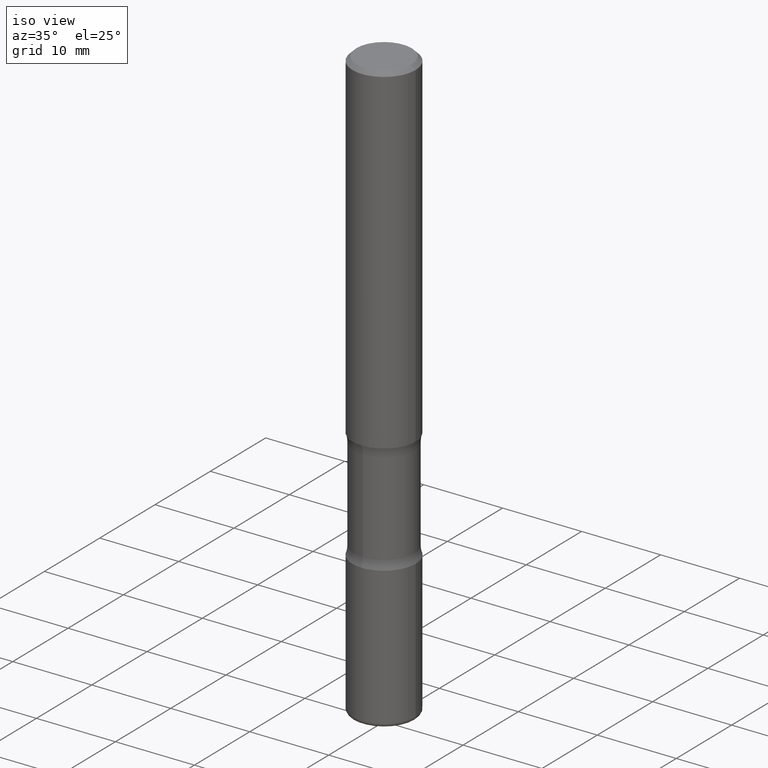
[diagram: clean part render]
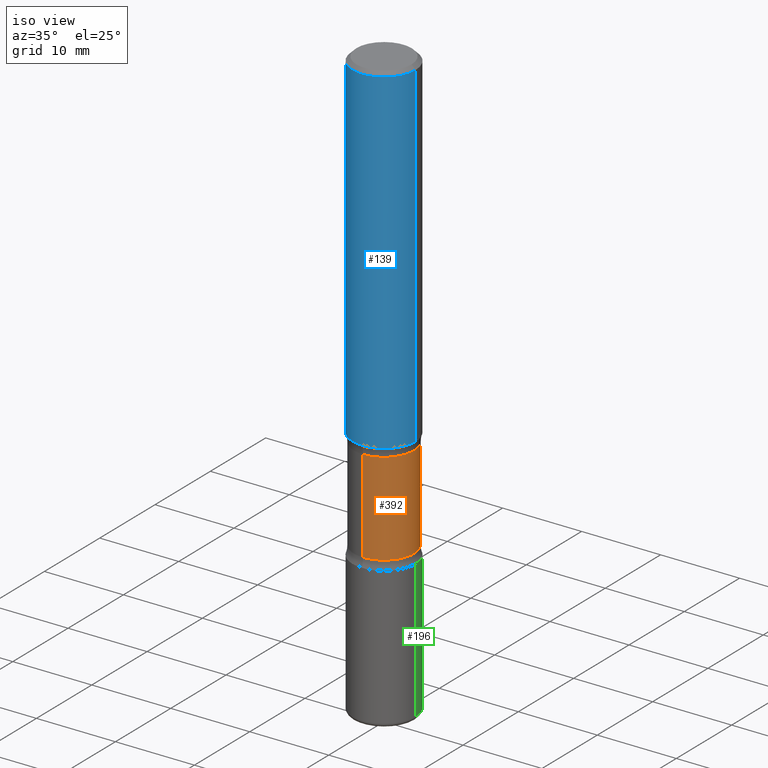
[diagram: same view with three faces highlighted in distinct colors, each labeled with its STEP entity id]
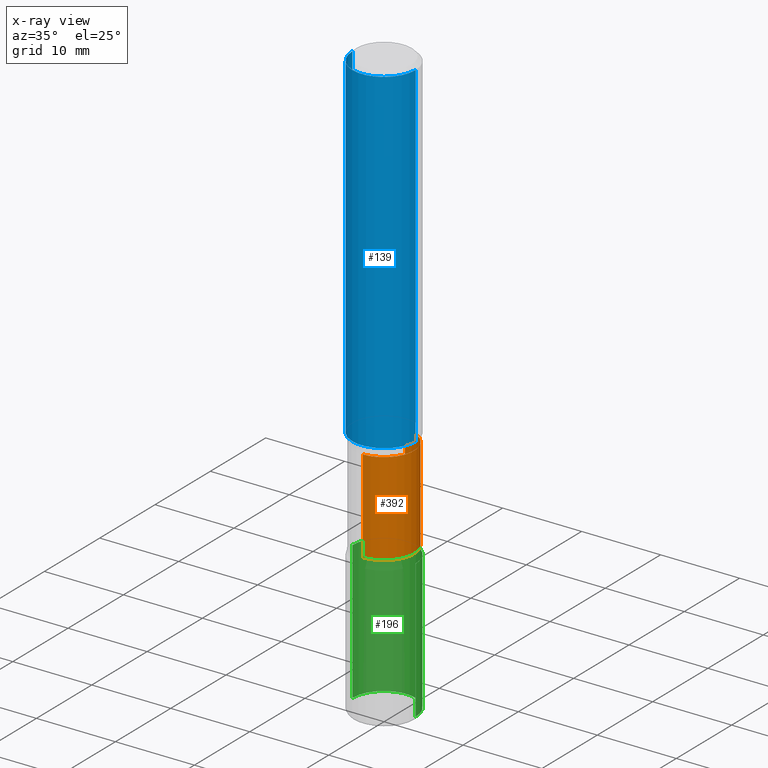
[diagram: x-ray of the same camera — body ghosted, the three highlighted faces saturated]
A machine part, iso view with three faces highlighted in distinct colors.
The next image is the same camera in x-ray (body ghosted, the three faces saturated) — at least one of them is partly hidden behind the body in this view.
Their STEP definitions:

[orange] entity #392 — the highlighted cylindrical surface (partial cylindrical patch) has radius 3.7998 mm, axis along (0, -0, -1).
#3 = FACE_OUTER_BOUND ( 'NONE', #237, .T. ) ;
#41 = CARTESIAN_POINT ( 'NONE',  ( 5.394669899984199995E-29, -7.662861192454106657E-15, -2.200366831809254631 ) ) ;
#50 = LINE ( 'NONE', #554, #271 ) ;
#74 = AXIS2_PLACEMENT_3D ( 'NONE', #41, #510, #255 ) ;
#104 = DIRECTION ( 'NONE',  ( 2.131257620516683255E-29, -3.941449640510431903E-15, -1.000000000000000000 ) ) ;
#118 = EDGE_CURVE ( 'NONE', #229, #486, #217, .T. ) ;
#137 = DIRECTION ( 'NONE',  ( 2.131257620516683255E-29, -3.941449640510431903E-15, -1.000000000000000000 ) ) ;
#149 = DIRECTION ( 'NONE',  ( 6.982962677686265133E-15, 1.000000000000000000, -3.652203200085917089E-15 ) ) ;
#168 = DIRECTION ( 'NONE',  ( 2.131257620516683255E-29, -3.941449640510431903E-15, -1.000000000000000000 ) ) ;
#176 = ORIENTED_EDGE ( 'NONE', *, *, #251, .T. ) ;
#179 = CARTESIAN_POINT ( 'NONE',  ( -1.053429467557764082E-15, -0.1496000000000076158, -2.200366831809253743 ) ) ;
#207 = VERTEX_POINT ( 'NONE', #179 ) ;
#217 = LINE ( 'NONE', #306, #226 ) ;
#226 = VECTOR ( 'NONE', #469, 39.37007874015748143 ) ;
#229 = VERTEX_POINT ( 'NONE', #373 ) ;
#237 = EDGE_LOOP ( 'NONE', ( #466, #176, #289, #364 ) ) ;
#251 = EDGE_CURVE ( 'NONE', #362, #207, #50, .T. ) ;
#255 = DIRECTION ( 'NONE',  ( 6.982962677686265133E-15, 1.000000000000000000, -3.652203200085914722E-15 ) ) ;
#271 = VECTOR ( 'NONE', #168, 39.37007874015748143 ) ;
#289 = ORIENTED_EDGE ( 'NONE', *, *, #300, .F. ) ;
#300 = EDGE_CURVE ( 'NONE', #486, #207, #307, .T. ) ;
#306 = CARTESIAN_POINT ( 'NONE',  ( 1.044651216581934232E-15, 0.1495999999999892416, -2.952800000000000313 ) ) ;
#307 = CIRCLE ( 'NONE', #74, 0.1495999999999999552 ) ;
#310 = CARTESIAN_POINT ( 'NONE',  ( 1.044651216581919046E-15, 0.1495999999999922947, -2.200366831809255075 ) ) ;
#362 = VERTEX_POINT ( 'NONE', #458 ) ;
#364 = ORIENTED_EDGE ( 'NONE', *, *, #118, .F. ) ;
#368 = AXIS2_PLACEMENT_3D ( 'NONE', #473, #104, #433 ) ;
#373 = CARTESIAN_POINT ( 'NONE',  ( 1.044651216581907805E-15, 0.1495999999999939323, -1.736733168190745635 ) ) ;
#392 = ADVANCED_FACE ( 'NONE', ( #3 ), #515, .T. ) ;
#405 = AXIS2_PLACEMENT_3D ( 'NONE', #483, #137, #149 ) ;
#433 = DIRECTION ( 'NONE',  ( 6.982962677686266711E-15, 1.000000000000000000, -3.652203200085919456E-15 ) ) ;
#448 = CIRCLE ( 'NONE', #368, 0.1495999999999997609 ) ;
#458 = CARTESIAN_POINT ( 'NONE',  ( -1.053429467557773351E-15, -0.1496000000000056174, -1.736733168190744525 ) ) ;
#466 = ORIENTED_EDGE ( 'NONE', *, *, #494, .T. ) ;
#469 = DIRECTION ( 'NONE',  ( 2.131257620516683255E-29, -3.941449640510431903E-15, -1.000000000000000000 ) ) ;
#473 = CARTESIAN_POINT ( 'NONE',  ( 4.406547121269184241E-29, -5.835472455656399811E-15, -1.736733168190745191 ) ) ;
#483 = CARTESIAN_POINT ( 'NONE',  ( 6.998298823620237737E-29, -1.062853863272764355E-14, -2.952799999999999869 ) ) ;
#486 = VERTEX_POINT ( 'NONE', #310 ) ;
#494 = EDGE_CURVE ( 'NONE', #229, #362, #448, .T. ) ;
#510 = DIRECTION ( 'NONE',  ( 2.131257620516683255E-29, -3.941449640510431903E-15, -1.000000000000000000 ) ) ;
#515 = CYLINDRICAL_SURFACE ( 'NONE', #405, 0.1495999999999998442 ) ;
#554 = CARTESIAN_POINT ( 'NONE',  ( -1.026330500466550053E-15, -0.1496000000000104746, -2.952799999999998981 ) ) ;

[blue] entity #139 — the highlighted cylindrical surface (partial cylindrical patch) has radius 4.0005 mm, axis along (-0, 0, 1).
#6 = CARTESIAN_POINT ( 'NONE',  ( -0.1575000000000000011, 1.119104808822157801E-15, -7.747322767151475583E-30 ) ) ;
#35 = CARTESIAN_POINT ( 'NONE',  ( -0.1575000000000000844, -1.871348957896992789E-15, -1.692999999999999616 ) ) ;
#37 = VERTEX_POINT ( 'NONE', #210 ) ;
#47 = DIRECTION ( 'NONE',  ( -2.445468806185136597E-29, 3.491481338843145583E-15, 1.000000000000000000 ) ) ;
#55 = DIRECTION ( 'NONE',  ( -2.445468806185136597E-29, 3.491481338843145583E-15, 1.000000000000000000 ) ) ;
#60 = CARTESIAN_POINT ( 'NONE',  ( 0.000000000000000000, 0.000000000000000000, 0.000000000000000000 ) ) ;
#82 = ORIENTED_EDGE ( 'NONE', *, *, #121, .T. ) ;
#91 = CIRCLE ( 'NONE', #557, 0.1574999999999998901 ) ;
#99 = CYLINDRICAL_SURFACE ( 'NONE', #119, 0.1575000000000000011 ) ;
#102 = VECTOR ( 'NONE', #145, 39.37007874015748143 ) ;
#105 = LINE ( 'NONE', #425, #396 ) ;
#119 = AXIS2_PLACEMENT_3D ( 'NONE', #60, #47, #311 ) ;
#121 = EDGE_CURVE ( 'NONE', #274, #447, #105, .T. ) ;
#125 = EDGE_LOOP ( 'NONE', ( #531, #534, #82, #166 ) ) ;
#139 = ADVANCED_FACE ( 'NONE', ( #434 ), #99, .T. ) ;
#145 = DIRECTION ( 'NONE',  ( -2.445468806185136877E-29, 3.491481338843145188E-15, 1.000000000000000000 ) ) ;
#165 = AXIS2_PLACEMENT_3D ( 'NONE', #273, #55, #230 ) ;
#166 = ORIENTED_EDGE ( 'NONE', *, *, #182, .F. ) ;
#182 = EDGE_CURVE ( 'NONE', #37, #447, #91, .T. ) ;
#188 = LINE ( 'NONE', #6, #102 ) ;
#210 = CARTESIAN_POINT ( 'NONE',  ( -0.1574999999999998901, 1.029986994958723196E-15, -0.02000000000000000042 ) ) ;
#221 = DIRECTION ( 'NONE',  ( 1.000000000000000000, -6.982962677686266711E-15, 0.000000000000000000 ) ) ;
#230 = DIRECTION ( 'NONE',  ( 1.000000000000000000, -6.982962677686264344E-15, 0.000000000000000000 ) ) ;
#258 = DIRECTION ( 'NONE',  ( -2.445468806185136877E-29, 3.491481338843145188E-15, 1.000000000000000000 ) ) ;
#270 = VERTEX_POINT ( 'NONE', #35 ) ;
#273 = CARTESIAN_POINT ( 'NONE',  ( 4.140178688871434900E-29, -5.911077906661444587E-15, -1.692999999999999616 ) ) ;
#274 = VERTEX_POINT ( 'NONE', #512 ) ;
#311 = DIRECTION ( 'NONE',  ( 1.000000000000000000, -6.982962677686265922E-15, 4.876176775795935232E-29 ) ) ;
#396 = VECTOR ( 'NONE', #258, 39.37007874015748143 ) ;
#425 = CARTESIAN_POINT ( 'NONE',  ( 0.1575000000000000011, -1.099816621735586889E-15, 7.679978421878598033E-30 ) ) ;
#431 = DIRECTION ( 'NONE',  ( -2.445468806185136597E-29, 3.491481338843145583E-15, 1.000000000000000000 ) ) ;
#434 = FACE_OUTER_BOUND ( 'NONE', #125, .T. ) ;
#447 = VERTEX_POINT ( 'NONE', #516 ) ;
#449 = EDGE_CURVE ( 'NONE', #270, #274, #535, .T. ) ;
#487 = EDGE_CURVE ( 'NONE', #270, #37, #188, .T. ) ;
#512 = CARTESIAN_POINT ( 'NONE',  ( 0.1575000000000000844, -7.010894528397031278E-15, -1.692999999999999616 ) ) ;
#514 = CARTESIAN_POINT ( 'NONE',  ( 4.890937612370273159E-31, -6.982962677686291609E-17, -0.02000000000000000042 ) ) ;
#516 = CARTESIAN_POINT ( 'NONE',  ( 0.1574999999999998901, -1.150358061425878289E-15, -0.02000000000000000042 ) ) ;
#531 = ORIENTED_EDGE ( 'NONE', *, *, #487, .F. ) ;
#534 = ORIENTED_EDGE ( 'NONE', *, *, #449, .T. ) ;
#535 = CIRCLE ( 'NONE', #165, 0.1575000000000000844 ) ;
#557 = AXIS2_PLACEMENT_3D ( 'NONE', #514, #431, #221 ) ;

[green] entity #196 — the highlighted cylindrical surface (partial cylindrical patch) has radius 4.0005 mm, axis along (-0, 0, 1).
#14 = CARTESIAN_POINT ( 'NONE',  ( 0.1575000000000000844, -8.935049894233489031E-15, -2.244099999999999540 ) ) ;
#17 = ORIENTED_EDGE ( 'NONE', *, *, #103, .T. ) ;
#27 = CIRCLE ( 'NONE', #481, 0.1575000000000000566 ) ;
#33 = CARTESIAN_POINT ( 'NONE',  ( -0.1575000000000000289, -9.121759106138672895E-15, -2.933100000000000041 ) ) ;
#43 = VERTEX_POINT ( 'NONE', #244 ) ;
#52 = ORIENTED_EDGE ( 'NONE', *, *, #200, .F. ) ;
#67 = VERTEX_POINT ( 'NONE', #33 ) ;
#73 = ORIENTED_EDGE ( 'NONE', *, *, #194, .F. ) ;
#85 = EDGE_CURVE ( 'NONE', #43, #67, #27, .T. ) ;
#103 = EDGE_CURVE ( 'NONE', #67, #129, #347, .T. ) ;
#109 = EDGE_LOOP ( 'NONE', ( #232, #17, #73, #52 ) ) ;
#123 = CARTESIAN_POINT ( 'NONE',  ( 7.172804555421624566E-29, -1.024086391496083050E-14, -2.933100000000000041 ) ) ;
#128 = DIRECTION ( 'NONE',  ( 1.000000000000000000, -6.982962677686267499E-15, 4.876176775795936353E-29 ) ) ;
#129 = VERTEX_POINT ( 'NONE', #265 ) ;
#174 = AXIS2_PLACEMENT_3D ( 'NONE', #493, #538, #128 ) ;
#184 = VECTOR ( 'NONE', #436, 39.37007874015748143 ) ;
#192 = VECTOR ( 'NONE', #214, 39.37007874015748143 ) ;
#194 = EDGE_CURVE ( 'NONE', #520, #129, #517, .T. ) ;
#196 = ADVANCED_FACE ( 'NONE', ( #369 ), #327, .T. ) ;
#200 = EDGE_CURVE ( 'NONE', #43, #520, #424, .T. ) ;
#214 = DIRECTION ( 'NONE',  ( -2.445468806185136877E-29, 3.491481338843145188E-15, 1.000000000000000000 ) ) ;
#218 = AXIS2_PLACEMENT_3D ( 'NONE', #241, #490, #452 ) ;
#232 = ORIENTED_EDGE ( 'NONE', *, *, #85, .T. ) ;
#241 = CARTESIAN_POINT ( 'NONE',  ( 5.487876547960064752E-29, -7.835233272497900762E-15, -2.244099999999999540 ) ) ;
#244 = CARTESIAN_POINT ( 'NONE',  ( 0.1575000000000000289, -1.134068053669641877E-14, -2.933100000000000041 ) ) ;
#265 = CARTESIAN_POINT ( 'NONE',  ( -0.1575000000000000844, -7.918943784907207238E-15, -2.244099999999999540 ) ) ;
#267 = DIRECTION ( 'NONE',  ( 1.000000000000000000, -6.982962677686272233E-15, 0.000000000000000000 ) ) ;
#285 = DIRECTION ( 'NONE',  ( -2.445468806185136597E-29, 3.491481338843145583E-15, 1.000000000000000000 ) ) ;
#327 = CYLINDRICAL_SURFACE ( 'NONE', #174, 0.1575000000000000844 ) ;
#342 = CARTESIAN_POINT ( 'NONE',  ( -0.1575000000000000844, 1.119104808822158392E-15, -7.747322767151481189E-30 ) ) ;
#347 = LINE ( 'NONE', #342, #184 ) ;
#369 = FACE_OUTER_BOUND ( 'NONE', #109, .T. ) ;
#424 = LINE ( 'NONE', #546, #192 ) ;
#436 = DIRECTION ( 'NONE',  ( -2.445468806185136877E-29, 3.491481338843145188E-15, 1.000000000000000000 ) ) ;
#452 = DIRECTION ( 'NONE',  ( 1.000000000000000000, -6.982962677686264344E-15, 0.000000000000000000 ) ) ;
#481 = AXIS2_PLACEMENT_3D ( 'NONE', #123, #285, #267 ) ;
#490 = DIRECTION ( 'NONE',  ( -2.445468806185136597E-29, 3.491481338843145583E-15, 1.000000000000000000 ) ) ;
#493 = CARTESIAN_POINT ( 'NONE',  ( 0.000000000000000000, 0.000000000000000000, 0.000000000000000000 ) ) ;
#517 = CIRCLE ( 'NONE', #218, 0.1575000000000000844 ) ;
#520 = VERTEX_POINT ( 'NONE', #14 ) ;
#538 = DIRECTION ( 'NONE',  ( -2.445468806185136597E-29, 3.491481338843145583E-15, 1.000000000000000000 ) ) ;
#546 = CARTESIAN_POINT ( 'NONE',  ( 0.1575000000000000844, -1.099816621735587677E-15, 7.679978421878603638E-30 ) ) ;